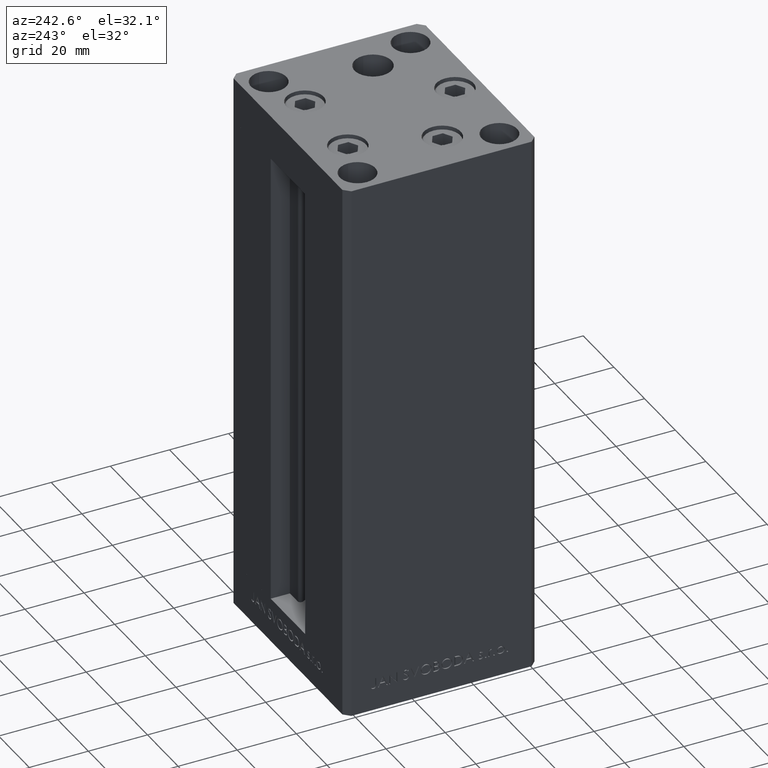
[diagram: clean part render]
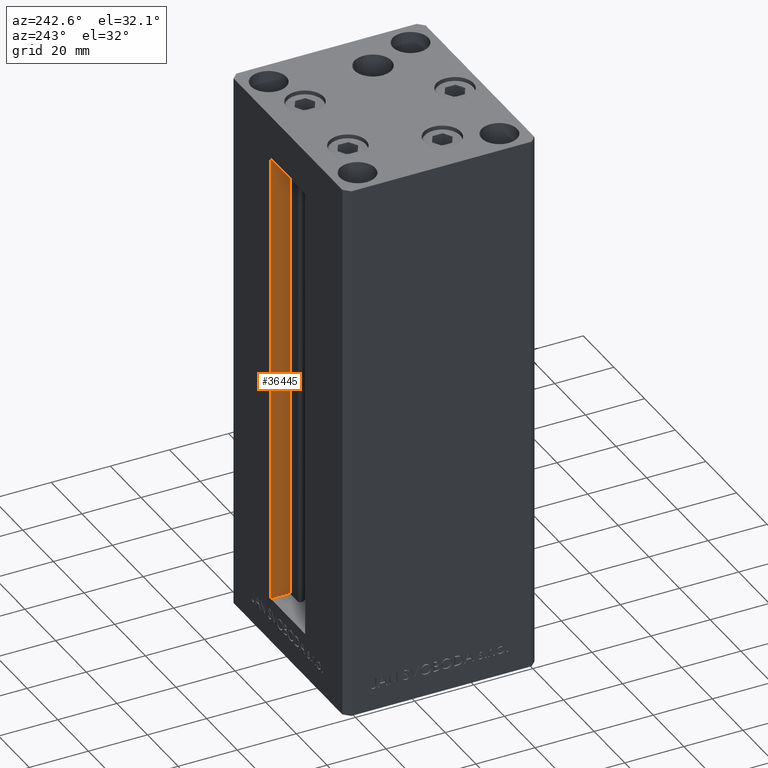
[diagram: same view with one face highlighted and labeled with its STEP entity id]
A machine part, auxiliary view. The second image highlights one B-rep face of the part: STEP entity #36445.
In plain terms, the highlighted planar face has unit normal (1, 0, 0).
Its self-contained STEP definition (entity closure, byte-faithful):
#4738 = DIRECTION ( 'NONE',  ( -0.000000000000000000, -1.000000000000000000, 0.000000000000000000 ) ) ;
#5780 = EDGE_LOOP ( 'NONE', ( #33488, #13958, #11398, #47243 ) ) ;
#6008 = EDGE_CURVE ( 'NONE', #14074, #12274, #32542, .T. ) ;
#8266 = VERTEX_POINT ( 'NONE', #28520 ) ;
#9457 = EDGE_CURVE ( 'NONE', #46248, #8266, #38622, .T. ) ;
#11311 = DIRECTION ( 'NONE',  ( 0.000000000000000000, 0.000000000000000000, -1.000000000000000000 ) ) ;
#11398 = ORIENTED_EDGE ( 'NONE', *, *, #17394, .T. ) ;
#12274 = VERTEX_POINT ( 'NONE', #33507 ) ;
#13958 = ORIENTED_EDGE ( 'NONE', *, *, #6008, .F. ) ;
#14042 = AXIS2_PLACEMENT_3D ( 'NONE', #44980, #33821, #11311 ) ;
#14074 = VERTEX_POINT ( 'NONE', #33577 ) ;
#14160 = VECTOR ( 'NONE', #46692, 1000.000000000000000 ) ;
#17394 = EDGE_CURVE ( 'NONE', #14074, #8266, #27134, .T. ) ;
#18721 = PLANE ( 'NONE',  #14042 ) ;
#19466 = CARTESIAN_POINT ( 'NONE',  ( 11.25000000000000178, 25.99999999999999289, 0.000000000000000000 ) ) ;
#19608 = CARTESIAN_POINT ( 'NONE',  ( 11.24999999999999467, 32.49999999999999289, 156.0000000000000000 ) ) ;
#23627 = DIRECTION ( 'NONE',  ( -0.000000000000000000, -0.000000000000000000, 1.000000000000000000 ) ) ;
#25653 = EDGE_CURVE ( 'NONE', #12274, #46248, #35030, .T. ) ;
#27134 = LINE ( 'NONE', #19466, #14160 ) ;
#27864 = VECTOR ( 'NONE', #23627, 1000.000000000000000 ) ;
#28520 = CARTESIAN_POINT ( 'NONE',  ( 11.25000000000000178, 25.99999999999999289, 156.0000000000000000 ) ) ;
#29876 = FACE_OUTER_BOUND ( 'NONE', #5780, .T. ) ;
#30149 = CARTESIAN_POINT ( 'NONE',  ( 11.25000000000000178, 32.49999999999999289, 0.000000000000000000 ) ) ;
#30620 = VECTOR ( 'NONE', #4738, 1000.000000000000000 ) ;
#32049 = DIRECTION ( 'NONE',  ( 0.000000000000000000, 1.000000000000000000, 0.000000000000000000 ) ) ;
#32542 = LINE ( 'NONE', #36013, #41816 ) ;
#33488 = ORIENTED_EDGE ( 'NONE', *, *, #25653, .F. ) ;
#33507 = CARTESIAN_POINT ( 'NONE',  ( 11.25000000000000178, 32.49999999999999289, 0.000000000000000000 ) ) ;
#33577 = CARTESIAN_POINT ( 'NONE',  ( 11.25000000000000178, 25.99999999999999289, 0.000000000000000000 ) ) ;
#33821 = DIRECTION ( 'NONE',  ( 1.000000000000000000, -0.000000000000000000, 0.000000000000000000 ) ) ;
#34922 = CARTESIAN_POINT ( 'NONE',  ( 11.25000000000000178, 0.000000000000000000, 156.0000000000000000 ) ) ;
#35030 = LINE ( 'NONE', #30149, #27864 ) ;
#36013 = CARTESIAN_POINT ( 'NONE',  ( 11.25000000000000178, 25.99999999999999289, 0.000000000000000000 ) ) ;
#36445 = ADVANCED_FACE ( 'NONE', ( #29876 ), #18721, .F. ) ;
#38622 = LINE ( 'NONE', #34922, #30620 ) ;
#41816 = VECTOR ( 'NONE', #32049, 1000.000000000000000 ) ;
#44980 = CARTESIAN_POINT ( 'NONE',  ( 11.25000000000000178, 25.99999999999999289, 0.000000000000000000 ) ) ;
#46248 = VERTEX_POINT ( 'NONE', #19608 ) ;
#46692 = DIRECTION ( 'NONE',  ( -0.000000000000000000, -0.000000000000000000, 1.000000000000000000 ) ) ;
#47243 = ORIENTED_EDGE ( 'NONE', *, *, #9457, .F. ) ;